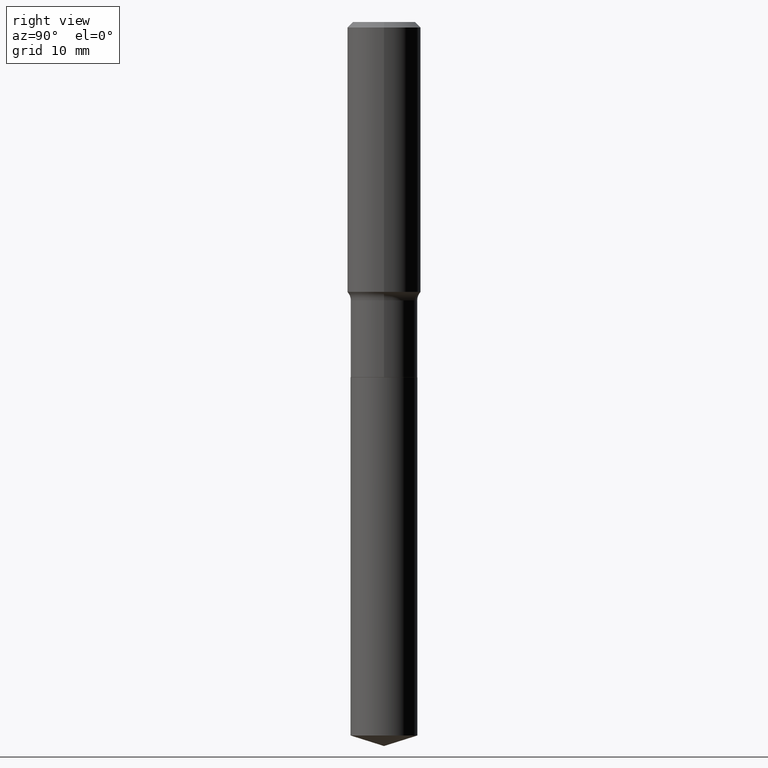
[diagram: clean part render]
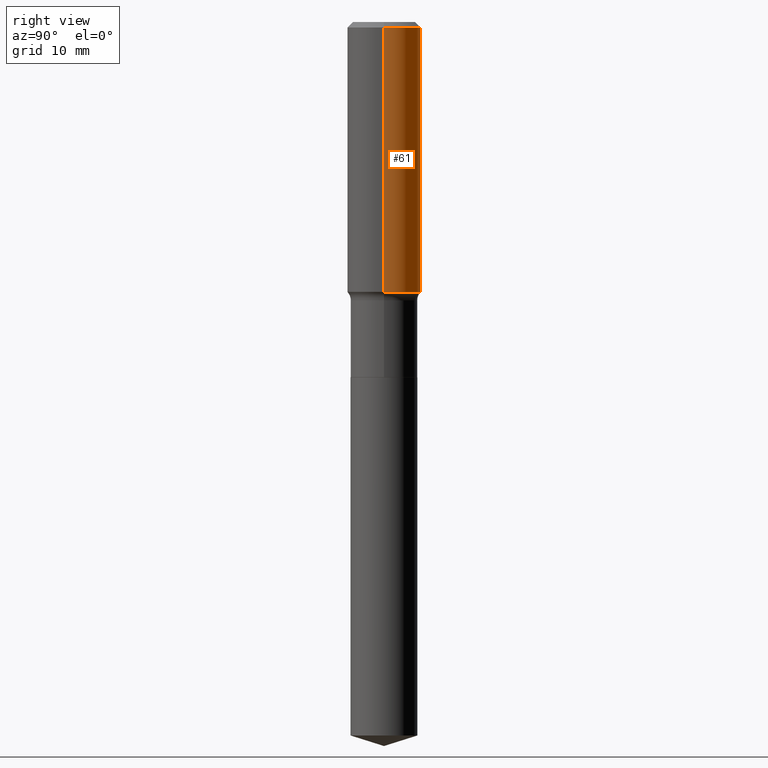
[diagram: same view with one face highlighted and labeled with its STEP entity id]
A machine part, right view. The second image highlights one B-rep face of the part: STEP entity #61.
In plain terms, the highlighted cylindrical surface (partial cylindrical patch) has radius 5.9995 mm, axis along (-0, 0, 1).
Its self-contained STEP definition (entity closure, byte-faithful):
#21 = ORIENTED_EDGE ( 'NONE', *, *, #167, .F. ) ;
#24 = VECTOR ( 'NONE', #307, 39.37007874015748143 ) ;
#32 = ORIENTED_EDGE ( 'NONE', *, *, #65, .T. ) ;
#37 = VERTEX_POINT ( 'NONE', #196 ) ;
#61 = ADVANCED_FACE ( 'NONE', ( #287 ), #433, .T. ) ;
#65 = EDGE_CURVE ( 'NONE', #37, #476, #214, .T. ) ;
#75 = VERTEX_POINT ( 'NONE', #255 ) ;
#103 = EDGE_CURVE ( 'NONE', #476, #422, #487, .T. ) ;
#114 = EDGE_LOOP ( 'NONE', ( #32, #151, #453, #21 ) ) ;
#118 = VECTOR ( 'NONE', #224, 39.37007874015748143 ) ;
#124 = DIRECTION ( 'NONE',  ( 1.000000000000000000, -6.982962677686265922E-15, 0.000000000000000000 ) ) ;
#151 = ORIENTED_EDGE ( 'NONE', *, *, #103, .T. ) ;
#158 = DIRECTION ( 'NONE',  ( 1.000000000000000000, -6.982962677686266711E-15, 4.876176775795936353E-29 ) ) ;
#167 = EDGE_CURVE ( 'NONE', #37, #75, #481, .T. ) ;
#183 = CARTESIAN_POINT ( 'NONE',  ( -0.2362000000000001321, 1.678301941865357577E-15, -1.161852468318209457E-29 ) ) ;
#196 = CARTESIAN_POINT ( 'NONE',  ( 0.2362000000000002709, -7.696858337813480014E-15, -1.732067843543947605 ) ) ;
#199 = CARTESIAN_POINT ( 'NONE',  ( 0.000000000000000000, 0.000000000000000000, 0.000000000000000000 ) ) ;
#214 = CIRCLE ( 'NONE', #279, 0.2362000000000002431 ) ;
#224 = DIRECTION ( 'NONE',  ( -2.445468806185136877E-29, 3.491481338843145188E-15, 1.000000000000000000 ) ) ;
#243 = DIRECTION ( 'NONE',  ( 1.000000000000000000, -6.982962677686266711E-15, 0.000000000000000000 ) ) ;
#255 = CARTESIAN_POINT ( 'NONE',  ( 0.2361999999999999933, -1.773078968304709514E-15, -0.03543000000000021826 ) ) ;
#263 = CARTESIAN_POINT ( 'NONE',  ( 0.2362000000000001321, -1.649375784469497117E-15, 1.151752954443000789E-29 ) ) ;
#279 = AXIS2_PLACEMENT_3D ( 'NONE', #313, #460, #124 ) ;
#287 = FACE_OUTER_BOUND ( 'NONE', #114, .T. ) ;
#307 = DIRECTION ( 'NONE',  ( -2.445468806185136877E-29, 3.491481338843145188E-15, 1.000000000000000000 ) ) ;
#313 = CARTESIAN_POINT ( 'NONE',  ( 4.235717881583081171E-29, -6.047482553343981911E-15, -1.732067843543947605 ) ) ;
#324 = CIRCLE ( 'NONE', #455, 0.2361999999999999933 ) ;
#329 = EDGE_CURVE ( 'NONE', #75, #422, #324, .T. ) ;
#343 = DIRECTION ( 'NONE',  ( -2.445468806185136597E-29, 3.491481338843145583E-15, 1.000000000000000000 ) ) ;
#362 = CARTESIAN_POINT ( 'NONE',  ( -0.2362000000000002709, -4.369180611478623939E-15, -1.732067843543947605 ) ) ;
#419 = CARTESIAN_POINT ( 'NONE',  ( -0.2361999999999999933, -1.407290926724239380E-15, -0.03543000000000021826 ) ) ;
#422 = VERTEX_POINT ( 'NONE', #419 ) ;
#426 = DIRECTION ( 'NONE',  ( -2.445468806185136597E-29, 3.491481338843145583E-15, 1.000000000000000000 ) ) ;
#433 = CYLINDRICAL_SURFACE ( 'NONE', #485, 0.2362000000000001321 ) ;
#453 = ORIENTED_EDGE ( 'NONE', *, *, #329, .F. ) ;
#455 = AXIS2_PLACEMENT_3D ( 'NONE', #465, #426, #243 ) ;
#460 = DIRECTION ( 'NONE',  ( -2.445468806185136597E-29, 3.491481338843145583E-15, 1.000000000000000000 ) ) ;
#465 = CARTESIAN_POINT ( 'NONE',  ( 8.664295980313993487E-31, -1.237031838352134079E-16, -0.03543000000000021826 ) ) ;
#476 = VERTEX_POINT ( 'NONE', #362 ) ;
#481 = LINE ( 'NONE', #263, #24 ) ;
#485 = AXIS2_PLACEMENT_3D ( 'NONE', #199, #343, #158 ) ;
#487 = LINE ( 'NONE', #183, #118 ) ;